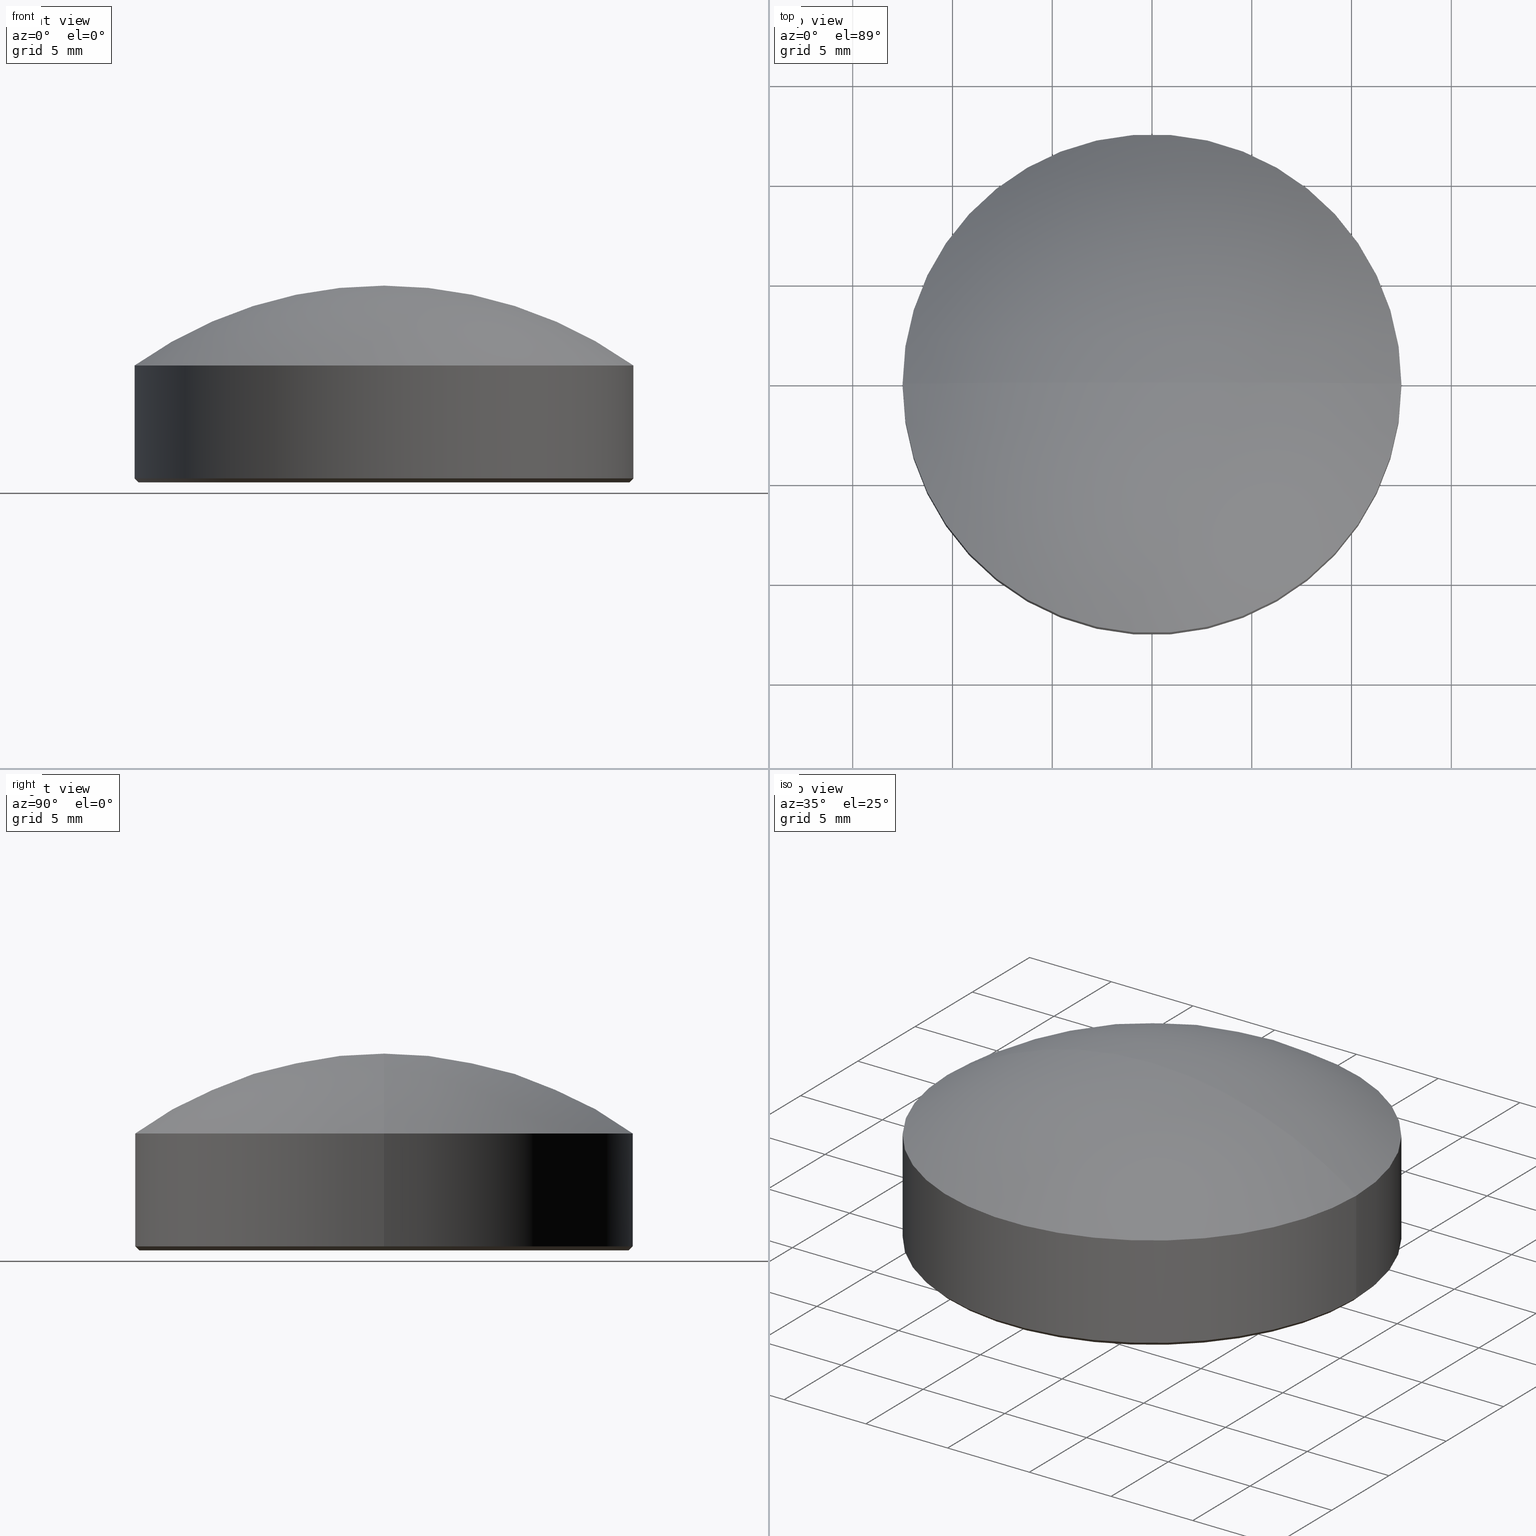
[diagram: canonical four-view strip — front | top / right | iso, engineering-drawing reading convention]
A machine part, canonical four-view strip (front | top / right | iso — engineering-drawing reading convention). The complete STEP part file that produces these views, byte-faithful:
ISO-10303-21;
HEADER;
FILE_DESCRIPTION (( 'STEP AP214' ),
    '1' );
FILE_NAME ('GLA11-025-025-H-VIS.STEP',
    '2024-08-09T08:38:10',
    ( 'Windows User' ),
    ( 'P R C' ),
    'SwSTEP 2.0',
    'SolidWorks 2022',
    '' );
FILE_SCHEMA (( 'AUTOMOTIVE_DESIGN' ));
ENDSEC;

DATA;
#1 = CYLINDRICAL_SURFACE ( 'NONE', #111, 12.50000000000000000 ) ;
#2 =( NAMED_UNIT ( * ) SI_UNIT ( $, .STERADIAN. ) SOLID_ANGLE_UNIT ( ) );
#3 = DIRECTION ( 'NONE',  ( 1.000000000000000000, 0.000000000000000000, 0.000000000000000000 ) ) ;
#4 = CARTESIAN_POINT ( 'NONE',  ( 0.000000000000000000, 0.000000000000000000, 0.2000000000000178857 ) ) ;
#5 = DIRECTION ( 'NONE',  ( 1.000000000000000000, 0.000000000000000000, 0.000000000000000000 ) ) ;
#6 = CIRCLE ( 'NONE', #128, 21.53125000000000711 ) ;
#7 = SURFACE_SIDE_STYLE ('',( #91 ) ) ;
#8 =( LENGTH_UNIT ( ) NAMED_UNIT ( * ) SI_UNIT ( .MILLI., .METRE. ) );
#9 = ORIENTED_EDGE ( 'NONE', *, *, #77, .F. ) ;
#10 = AXIS2_PLACEMENT_3D ( 'NONE', #162, #55, #121 ) ;
#11 = AXIS2_PLACEMENT_3D ( 'NONE', #188, #42, #109 ) ;
#12 = CYLINDRICAL_SURFACE ( 'NONE', #26, 12.50000000000000000 ) ;
#13 = ADVANCED_FACE ( 'NONE', ( #144 ), #1, .T. ) ;
#14 = STYLED_ITEM ( 'NONE', ( #88 ), #143 ) ;
#15 = CARTESIAN_POINT ( 'NONE',  ( 0.000000000000000000, 0.000000000000000000, 0.000000000000000000 ) ) ;
#16 = VERTEX_POINT ( 'NONE', #179 ) ;
#17 = DIRECTION ( 'NONE',  ( 0.000000000000000000, 0.000000000000000000, 1.000000000000000000 ) ) ;
#18 = FACE_OUTER_BOUND ( 'NONE', #70, .T. ) ;
#19 = CARTESIAN_POINT ( 'NONE',  ( 0.000000000000000000, 0.000000000000000000, 0.2000000000000178857 ) ) ;
#20 = DIRECTION ( 'NONE',  ( 1.000000000000000000, 0.000000000000000000, 0.000000000000000000 ) ) ;
#21 = CIRCLE ( 'NONE', #49, 12.50000000000000000 ) ;
#22 = SURFACE_STYLE_USAGE ( .BOTH. , #135 ) ;
#23 = CIRCLE ( 'NONE', #139, 12.50000000000000000 ) ;
#24 = CARTESIAN_POINT ( 'NONE',  ( 0.000000000000000000, 0.000000000000000000, 0.000000000000000000 ) ) ;
#25 = SURFACE_STYLE_USAGE ( .BOTH. , #7 ) ;
#26 = AXIS2_PLACEMENT_3D ( 'NONE', #212, #213, #29 ) ;
#27 = EDGE_LOOP ( 'NONE', ( #92, #198, #147 ) ) ;
#28 = ADVANCED_FACE ( 'NONE', ( #34 ), #83, .T. ) ;
#29 = DIRECTION ( 'NONE',  ( -1.000000000000000000, 0.000000000000000000, 0.000000000000000000 ) ) ;
#30 =( GEOMETRIC_REPRESENTATION_CONTEXT ( 3 ) GLOBAL_UNCERTAINTY_ASSIGNED_CONTEXT ( ( #154 ) ) GLOBAL_UNIT_ASSIGNED_CONTEXT ( ( #123, #89, #2 ) ) REPRESENTATION_CONTEXT ( 'NONE', 'WORKASPACE' ) );
#31 = CARTESIAN_POINT ( 'NONE',  ( 12.50000000000000000, 0.000000000000000000, 0.2000000000000178857 ) ) ;
#32 = CARTESIAN_POINT ( 'NONE',  ( 12.29999999999998295, 0.000000000000000000, 0.000000000000000000 ) ) ;
#33 = VERTEX_POINT ( 'NONE', #161 ) ;
#34 = FACE_OUTER_BOUND ( 'NONE', #93, .T. ) ;
#35 = APPLICATION_CONTEXT ( 'automotive_design' ) ;
#36 = LINE ( 'NONE', #166, #108 ) ;
#37 = DIRECTION ( 'NONE',  ( -0.000000000000000000, -0.000000000000000000, 1.000000000000000000 ) ) ;
#38 = SURFACE_STYLE_FILL_AREA ( #39 ) ;
#39 = FILL_AREA_STYLE ('',( #165 ) ) ;
#40 = CARTESIAN_POINT ( 'NONE',  ( -12.50000000000000000, 0.000000000000000000, 5.860000000000000320 ) ) ;
#41 = FILL_AREA_STYLE ('',( #78 ) ) ;
#42 = DIRECTION ( 'NONE',  ( 0.000000000000000000, 0.000000000000000000, 1.000000000000000000 ) ) ;
#43 = VERTEX_POINT ( 'NONE', #100 ) ;
#44 =( GEOMETRIC_REPRESENTATION_CONTEXT ( 3 ) GLOBAL_UNCERTAINTY_ASSIGNED_CONTEXT ( ( #110 ) ) GLOBAL_UNIT_ASSIGNED_CONTEXT ( ( #8, #168, #209 ) ) REPRESENTATION_CONTEXT ( 'NONE', 'WORKASPACE' ) );
#45 = AXIS2_PLACEMENT_3D ( 'NONE', #156, #94, #95 ) ;
#46 = ORIENTED_EDGE ( 'NONE', *, *, #173, .F. ) ;
#47 = ADVANCED_FACE ( 'NONE', ( #18 ), #12, .T. ) ;
#48 = SPHERICAL_SURFACE ( 'NONE', #45, 21.53125000000000711 ) ;
#49 = AXIS2_PLACEMENT_3D ( 'NONE', #195, #66, #84 ) ;
#50 = LINE ( 'NONE', #31, #75 ) ;
#51 = ORIENTED_EDGE ( 'NONE', *, *, #187, .F. ) ;
#52 = DIRECTION ( 'NONE',  ( 1.000000000000000000, 0.000000000000000000, 0.000000000000000000 ) ) ;
#53 = ORIENTED_EDGE ( 'NONE', *, *, #191, .F. ) ;
#54 = CARTESIAN_POINT ( 'NONE',  ( 0.000000000000000000, 0.000000000000000000, 0.000000000000000000 ) ) ;
#55 = DIRECTION ( 'NONE',  ( -1.224646799147353207E-16, -1.000000000000000000, -0.000000000000000000 ) ) ;
#56 = CARTESIAN_POINT ( 'NONE',  ( -12.29999999999998295, 1.518562030942716981E-15, 0.000000000000000000 ) ) ;
#57 = PRESENTATION_LAYER_ASSIGNMENT (  '', '', ( #215 ) ) ;
#58 = PRODUCT ( 'GLA11-025-025-H-VIS', 'GLA11-025-025-H-VIS', '', ( #138 ) ) ;
#59 = DIRECTION ( 'NONE',  ( 0.000000000000000000, 1.000000000000000000, 0.000000000000000000 ) ) ;
#60 = APPLICATION_CONTEXT ( 'automotive_design' ) ;
#61 = ADVANCED_FACE ( 'NONE', ( #65 ), #48, .T. ) ;
#62 = CIRCLE ( 'NONE', #211, 12.50000000000000000 ) ;
#63 = VERTEX_POINT ( 'NONE', #159 ) ;
#64 = ORIENTED_EDGE ( 'NONE', *, *, #191, .T. ) ;
#65 = FACE_OUTER_BOUND ( 'NONE', #85, .T. ) ;
#66 = DIRECTION ( 'NONE',  ( 0.000000000000000000, 0.000000000000000000, 1.000000000000000000 ) ) ;
#67 = DIRECTION ( 'NONE',  ( 0.7071067811865474617, 0.000000000000000000, 0.7071067811865474617 ) ) ;
#68 = ADVANCED_FACE ( 'NONE', ( #214 ), #148, .F. ) ;
#69 = ORIENTED_EDGE ( 'NONE', *, *, #122, .T. ) ;
#70 = EDGE_LOOP ( 'NONE', ( #9, #64, #129, #114 ) ) ;
#71 = DIRECTION ( 'NONE',  ( -1.000000000000000000, 0.000000000000000000, 0.000000000000000000 ) ) ;
#72 = MECHANICAL_DESIGN_GEOMETRIC_PRESENTATION_REPRESENTATION (  '', ( #14 ), #30 ) ;
#73 = CARTESIAN_POINT ( 'NONE',  ( 0.000000000000000000, 0.000000000000000000, -11.67125000000001123 ) ) ;
#74 = DIRECTION ( 'NONE',  ( -0.000000000000000000, -0.000000000000000000, -1.000000000000000000 ) ) ;
#75 = VECTOR ( 'NONE', #67, 1000.000000000000114 ) ;
#76 =( NAMED_UNIT ( * ) SI_UNIT ( $, .STERADIAN. ) SOLID_ANGLE_UNIT ( ) );
#77 = EDGE_CURVE ( 'NONE', #16, #145, #21, .T. ) ;
#78 = FILL_AREA_STYLE_COLOUR ( '', #141 ) ;
#79 = VERTEX_POINT ( 'NONE', #32 ) ;
#80 = ORIENTED_EDGE ( 'NONE', *, *, #187, .T. ) ;
#81 = EDGE_LOOP ( 'NONE', ( #53, #131, #69, #171 ) ) ;
#82 = ORIENTED_EDGE ( 'NONE', *, *, #136, .T. ) ;
#83 = CONICAL_SURFACE ( 'NONE', #197, 12.50000000000000000, 0.7853981633974482790 ) ;
#84 = DIRECTION ( 'NONE',  ( 1.000000000000000000, 0.000000000000000000, 0.000000000000000000 ) ) ;
#85 = EDGE_LOOP ( 'NONE', ( #189, #126, #82 ) ) ;
#86 = DIRECTION ( 'NONE',  ( -0.000000000000000000, -0.000000000000000000, 1.000000000000000000 ) ) ;
#87 = CIRCLE ( 'NONE', #203, 12.29999999999998295 ) ;
#88 = PRESENTATION_STYLE_ASSIGNMENT (( #22 ) ) ;
#89 =( NAMED_UNIT ( * ) PLANE_ANGLE_UNIT ( ) SI_UNIT ( $, .RADIAN. ) );
#90 = DIRECTION ( 'NONE',  ( -0.000000000000000000, -0.000000000000000000, -1.000000000000000000 ) ) ;
#91 = SURFACE_STYLE_FILL_AREA ( #41 ) ;
#92 = ORIENTED_EDGE ( 'NONE', *, *, #204, .T. ) ;
#93 = EDGE_LOOP ( 'NONE', ( #116, #51, #210, #119 ) ) ;
#94 = DIRECTION ( 'NONE',  ( -0.000000000000000000, -1.000000000000000000, 0.000000000000000000 ) ) ;
#95 = DIRECTION ( 'NONE',  ( -1.000000000000000000, 0.000000000000000000, 0.000000000000000000 ) ) ;
#96 = ADVANCED_BREP_SHAPE_REPRESENTATION ( 'GLA11-025-025-H-VIS', ( #143, #11 ), #196 ) ;
#97 = PRODUCT_DEFINITION_FORMATION_WITH_SPECIFIED_SOURCE ( '�κ�', '', #58, .NOT_KNOWN. ) ;
#98 = VECTOR ( 'NONE', #133, 1000.000000000000000 ) ;
#99 = DIRECTION ( 'NONE',  ( 1.000000000000000000, 0.000000000000000000, 0.000000000000000000 ) ) ;
#100 = CARTESIAN_POINT ( 'NONE',  ( -12.50000000000000000, 0.000000000000000000, 0.2000000000000178857 ) ) ;
#101 = FACE_OUTER_BOUND ( 'NONE', #132, .T. ) ;
#102 = DIRECTION ( 'NONE',  ( 1.000000000000000000, 0.000000000000000000, 0.000000000000000000 ) ) ;
#103 = CIRCLE ( 'NONE', #10, 21.53125000000000711 ) ;
#104 = CARTESIAN_POINT ( 'NONE',  ( -12.50000000000000000, 1.530808498934191521E-15, 0.2000000000000178857 ) ) ;
#105 = EDGE_CURVE ( 'NONE', #79, #33, #50, .T. ) ;
#106 = PRODUCT_DEFINITION_CONTEXT ( 'detailed design', #60, 'design' ) ;
#107 = AXIS2_PLACEMENT_3D ( 'NONE', #19, #37, #102 ) ;
#108 = VECTOR ( 'NONE', #74, 1000.000000000000000 ) ;
#109 = DIRECTION ( 'NONE',  ( 1.000000000000000000, 0.000000000000000000, 0.000000000000000000 ) ) ;
#110 = UNCERTAINTY_MEASURE_WITH_UNIT (LENGTH_MEASURE( 1.000000000000000082E-05 ), #8, 'distance_accuracy_value', 'NONE');
#111 = AXIS2_PLACEMENT_3D ( 'NONE', #176, #175, #194 ) ;
#112 = EDGE_CURVE ( 'NONE', #33, #43, #164, .T. ) ;
#113 = ORIENTED_EDGE ( 'NONE', *, *, #112, .F. ) ;
#114 = ORIENTED_EDGE ( 'NONE', *, *, #122, .F. ) ;
#115 = ADVANCED_FACE ( 'NONE', ( #118 ), #163, .T. ) ;
#116 = ORIENTED_EDGE ( 'NONE', *, *, #153, .F. ) ;
#117 = VERTEX_POINT ( 'NONE', #56 ) ;
#118 = FACE_OUTER_BOUND ( 'NONE', #27, .T. ) ;
#119 = ORIENTED_EDGE ( 'NONE', *, *, #180, .F. ) ;
#120 = CARTESIAN_POINT ( 'NONE',  ( 0.000000000000000000, 0.000000000000000000, 5.860000000000000320 ) ) ;
#121 = DIRECTION ( 'NONE',  ( 1.000000000000000000, -1.224646799147353207E-16, 0.000000000000000000 ) ) ;
#122 = EDGE_CURVE ( 'NONE', #145, #43, #137, .T. ) ;
#123 =( LENGTH_UNIT ( ) NAMED_UNIT ( * ) SI_UNIT ( .MILLI., .METRE. ) );
#124 = CARTESIAN_POINT ( 'NONE',  ( -12.50000000000000000, 0.000000000000000000, 5.860000000000000320 ) ) ;
#125 = PRESENTATION_STYLE_ASSIGNMENT (( #25 ) ) ;
#126 = ORIENTED_EDGE ( 'NONE', *, *, #77, .T. ) ;
#127 = PRODUCT_RELATED_PRODUCT_CATEGORY ( 'part', '', ( #58 ) ) ;
#128 = AXIS2_PLACEMENT_3D ( 'NONE', #207, #59, #151 ) ;
#129 = ORIENTED_EDGE ( 'NONE', *, *, #112, .T. ) ;
#130 = CARTESIAN_POINT ( 'NONE',  ( 0.000000000000000000, 0.000000000000000000, 0.2000000000000178857 ) ) ;
#131 = ORIENTED_EDGE ( 'NONE', *, *, #204, .F. ) ;
#132 = EDGE_LOOP ( 'NONE', ( #46, #140, #113, #178 ) ) ;
#133 = DIRECTION ( 'NONE',  ( -0.000000000000000000, -0.000000000000000000, -1.000000000000000000 ) ) ;
#134 = DIRECTION ( 'NONE',  ( 1.000000000000000000, 0.000000000000000000, 0.000000000000000000 ) ) ;
#135 = SURFACE_SIDE_STYLE ('',( #38 ) ) ;
#136 = EDGE_CURVE ( 'NONE', #145, #63, #6, .T. ) ;
#137 = LINE ( 'NONE', #40, #98 ) ;
#138 = PRODUCT_CONTEXT ( 'NONE', #35, 'mechanical' ) ;
#139 = AXIS2_PLACEMENT_3D ( 'NONE', #120, #181, #20 ) ;
#140 = ORIENTED_EDGE ( 'NONE', *, *, #153, .T. ) ;
#141 = COLOUR_RGB ( '',1.000000000000000000, 1.000000000000000000, 1.000000000000000000 ) ;
#142 = ADVANCED_FACE ( 'NONE', ( #101 ), #193, .T. ) ;
#143 = MANIFOLD_SOLID_BREP ( '����1', #172 ) ;
#144 = FACE_OUTER_BOUND ( 'NONE', #81, .T. ) ;
#145 = VERTEX_POINT ( 'NONE', #124 ) ;
#146 = DIRECTION ( 'NONE',  ( -0.000000000000000000, -0.000000000000000000, 1.000000000000000000 ) ) ;
#147 = ORIENTED_EDGE ( 'NONE', *, *, #136, .F. ) ;
#148 = PLANE ( 'NONE',  #160 ) ;
#149 = AXIS2_PLACEMENT_3D ( 'NONE', #54, #167, #3 ) ;
#150 = DIRECTION ( 'NONE',  ( -0.7071067811865474617, 8.659560562354932858E-17, 0.7071067811865474617 ) ) ;
#151 = DIRECTION ( 'NONE',  ( 0.000000000000000000, 0.000000000000000000, 1.000000000000000000 ) ) ;
#152 = APPLICATION_PROTOCOL_DEFINITION ( 'draft international standard', 'automotive_design', 1998, #60 ) ;
#153 = EDGE_CURVE ( 'NONE', #117, #43, #185, .T. ) ;
#154 = UNCERTAINTY_MEASURE_WITH_UNIT (LENGTH_MEASURE( 1.000000000000000082E-05 ), #123, 'distance_accuracy_value', 'NONE');
#155 = PRESENTATION_LAYER_ASSIGNMENT (  '', '', ( #14 ) ) ;
#156 = CARTESIAN_POINT ( 'NONE',  ( 0.000000000000000000, 0.000000000000000000, -11.67125000000001123 ) ) ;
#157 = CARTESIAN_POINT ( 'NONE',  ( 0.000000000000000000, 0.000000000000000000, 0.2000000000000178857 ) ) ;
#158 = PRODUCT_DEFINITION ( 'δ֪', '', #97, #106 ) ;
#159 = CARTESIAN_POINT ( 'NONE',  ( -1.318408819707072946E-15, 0.000000000000000000, 9.859999999999997655 ) ) ;
#160 = AXIS2_PLACEMENT_3D ( 'NONE', #15, #17, #200 ) ;
#161 = CARTESIAN_POINT ( 'NONE',  ( 12.50000000000000000, 1.530808498934191127E-15, 0.2000000000000178857 ) ) ;
#162 = CARTESIAN_POINT ( 'NONE',  ( 0.000000000000000000, 0.000000000000000000, -11.67125000000001123 ) ) ;
#163 = SPHERICAL_SURFACE ( 'NONE', #182, 21.53125000000000711 ) ;
#164 = CIRCLE ( 'NONE', #192, 12.50000000000000000 ) ;
#165 = FILL_AREA_STYLE_COLOUR ( '', #169 ) ;
#166 = CARTESIAN_POINT ( 'NONE',  ( 12.50000000000000000, 1.530808498934191127E-15, 5.860000000000000320 ) ) ;
#167 = DIRECTION ( 'NONE',  ( -0.000000000000000000, -0.000000000000000000, -1.000000000000000000 ) ) ;
#168 =( NAMED_UNIT ( * ) PLANE_ANGLE_UNIT ( ) SI_UNIT ( $, .RADIAN. ) );
#169 = COLOUR_RGB ( '',1.000000000000000000, 1.000000000000000000, 1.000000000000000000 ) ;
#170 = SHAPE_DEFINITION_REPRESENTATION ( #206, #96 ) ;
#171 = ORIENTED_EDGE ( 'NONE', *, *, #180, .T. ) ;
#172 = CLOSED_SHELL ( 'NONE', ( #142, #115, #47, #13, #68, #61, #28 ) ) ;
#173 = EDGE_CURVE ( 'NONE', #117, #79, #199, .T. ) ;
#174 = ORIENTED_EDGE ( 'NONE', *, *, #173, .T. ) ;
#175 = DIRECTION ( 'NONE',  ( -0.000000000000000000, -0.000000000000000000, -1.000000000000000000 ) ) ;
#176 = CARTESIAN_POINT ( 'NONE',  ( 0.000000000000000000, 0.000000000000000000, 5.860000000000000320 ) ) ;
#177 = VECTOR ( 'NONE', #150, 1000.000000000000114 ) ;
#178 = ORIENTED_EDGE ( 'NONE', *, *, #105, .F. ) ;
#179 = CARTESIAN_POINT ( 'NONE',  ( 12.50000000000000000, 1.530808498934191127E-15, 5.860000000000000320 ) ) ;
#180 = EDGE_CURVE ( 'NONE', #43, #33, #62, .T. ) ;
#181 = DIRECTION ( 'NONE',  ( 0.000000000000000000, 0.000000000000000000, 1.000000000000000000 ) ) ;
#182 = AXIS2_PLACEMENT_3D ( 'NONE', #73, #184, #71 ) ;
#183 =( LENGTH_UNIT ( ) NAMED_UNIT ( * ) SI_UNIT ( .MILLI., .METRE. ) );
#184 = DIRECTION ( 'NONE',  ( -0.000000000000000000, -1.000000000000000000, 0.000000000000000000 ) ) ;
#185 = LINE ( 'NONE', #104, #177 ) ;
#186 = APPLICATION_PROTOCOL_DEFINITION ( 'draft international standard', 'automotive_design', 1998, #35 ) ;
#187 = EDGE_CURVE ( 'NONE', #79, #117, #87, .T. ) ;
#188 = CARTESIAN_POINT ( 'NONE',  ( 0.000000000000000000, 0.000000000000000000, 0.000000000000000000 ) ) ;
#189 = ORIENTED_EDGE ( 'NONE', *, *, #208, .F. ) ;
#190 = UNCERTAINTY_MEASURE_WITH_UNIT (LENGTH_MEASURE( 1.000000000000000082E-05 ), #183, 'distance_accuracy_value', 'NONE');
#191 = EDGE_CURVE ( 'NONE', #16, #33, #36, .T. ) ;
#192 = AXIS2_PLACEMENT_3D ( 'NONE', #130, #216, #52 ) ;
#193 = CONICAL_SURFACE ( 'NONE', #107, 12.50000000000000000, 0.7853981633974482790 ) ;
#194 = DIRECTION ( 'NONE',  ( -1.000000000000000000, 0.000000000000000000, 0.000000000000000000 ) ) ;
#195 = CARTESIAN_POINT ( 'NONE',  ( 0.000000000000000000, 0.000000000000000000, 5.860000000000000320 ) ) ;
#196 =( GEOMETRIC_REPRESENTATION_CONTEXT ( 3 ) GLOBAL_UNCERTAINTY_ASSIGNED_CONTEXT ( ( #190 ) ) GLOBAL_UNIT_ASSIGNED_CONTEXT ( ( #183, #205, #76 ) ) REPRESENTATION_CONTEXT ( 'NONE', 'WORKASPACE' ) );
#197 = AXIS2_PLACEMENT_3D ( 'NONE', #157, #146, #99 ) ;
#198 = ORIENTED_EDGE ( 'NONE', *, *, #208, .T. ) ;
#199 = CIRCLE ( 'NONE', #149, 12.29999999999998295 ) ;
#200 = DIRECTION ( 'NONE',  ( 1.000000000000000000, 0.000000000000000000, -0.000000000000000000 ) ) ;
#201 = EDGE_LOOP ( 'NONE', ( #80, #174 ) ) ;
#202 = MECHANICAL_DESIGN_GEOMETRIC_PRESENTATION_REPRESENTATION (  '', ( #215 ), #44 ) ;
#203 = AXIS2_PLACEMENT_3D ( 'NONE', #24, #90, #5 ) ;
#204 = EDGE_CURVE ( 'NONE', #145, #16, #23, .T. ) ;
#205 =( NAMED_UNIT ( * ) PLANE_ANGLE_UNIT ( ) SI_UNIT ( $, .RADIAN. ) );
#206 = PRODUCT_DEFINITION_SHAPE ( 'NONE', 'NONE',  #158 ) ;
#207 = CARTESIAN_POINT ( 'NONE',  ( 0.000000000000000000, 0.000000000000000000, -11.67125000000001123 ) ) ;
#208 = EDGE_CURVE ( 'NONE', #16, #63, #103, .T. ) ;
#209 =( NAMED_UNIT ( * ) SI_UNIT ( $, .STERADIAN. ) SOLID_ANGLE_UNIT ( ) );
#210 = ORIENTED_EDGE ( 'NONE', *, *, #105, .T. ) ;
#211 = AXIS2_PLACEMENT_3D ( 'NONE', #4, #86, #134 ) ;
#212 = CARTESIAN_POINT ( 'NONE',  ( 0.000000000000000000, 0.000000000000000000, 5.860000000000000320 ) ) ;
#213 = DIRECTION ( 'NONE',  ( -0.000000000000000000, -0.000000000000000000, -1.000000000000000000 ) ) ;
#214 = FACE_OUTER_BOUND ( 'NONE', #201, .T. ) ;
#215 = STYLED_ITEM ( 'NONE', ( #125 ), #96 ) ;
#216 = DIRECTION ( 'NONE',  ( -0.000000000000000000, -0.000000000000000000, 1.000000000000000000 ) ) ;
ENDSEC;
END-ISO-10303-21;
